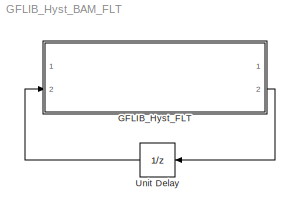
MODEL GFLIB_Hyst_BAM_FLT
KIND model
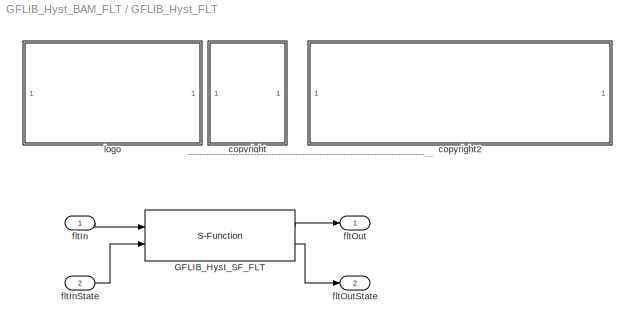
BLOCK [SubSystem] GFLIB_Hyst_FLT
  FunctionWithSeparateData = off
  MaskCallbackString = |||
  MaskDescription = Bit accurate model of hysteresis function. All parameters as well as input and output are in a full float range.
  MaskDisplay = color('black');port_label('input',1,'fltIn');port_label('input',2,'fltInState');port_label('output',1,'fltOut');port_label('output',2,'fltOutState');color('black');disp('GFLIB_Hyst_FLT');color('blue');text(tX,tY, 'BAM', 'horizontalAlignment', 'center');
  MaskEnableString = on,on,on,on
  MaskHideContents = off
  MaskIconFrame = on
  MaskIconOpaque = on
  MaskIconRotate = none
  MaskIconUnits = pixels
  MaskInitialization = pos = get_param(gcb, 'Position');width = pos(3) - pos(1); height = pos(4) - pos(2);tX=width/2;tY=height*0.9;
  MaskPortRotate = default
  MaskPromptString = fltHystOn|fltHystOff|fltOutValOn|fltOutValOff
  MaskStyleString = edit,edit,edit,edit
  MaskTabNameString = ,,,
  MaskToolTipString = on,on,on,on
  MaskTunableValueString = on,on,on,on
  MaskType = GFLIB_Hyst_FLT
  MaskValueString = fltHystOn|fltHystOff|fltOutValOn|fltOutValOff
  MaskVarAliasString = ,,,
  MaskVariables = fltHystOn=@1;fltHystOff=@2;fltOutValOn=@3;fltOutValOff=@4;
  MaskVisibilityString = on,on,on,on
  MinAlgLoopOccurrences = off
  Opaque = off
  Ports = [2, 2]
  PropExecContextOutsideSubsystem = off
  RTWSystemCode = Auto
  RequestExecContextInheritance = off
BLOCK [S-Function] GFLIB_Hyst_FLT/GFLIB_Hyst_SF_FLT
  EnableBusSupport = off
  FunctionName = GFLIB_Hyst_SF_FLT
  Parameters = fltHystOn,fltHystOff,fltOutValOn,fltOutValOff
  Ports = [2, 2]
BLOCK [SubSystem] GFLIB_Hyst_FLT/<copyright redacted>
  FunctionWithSeparateData = off
  MaskDisplay = text(10,90,'FILE:');text(10,75,'DESRIPTION:')text(10,60,'<copyright redacted>
  MaskHideContents = off
  MaskIconFrame = off
  MaskIconOpaque = on
  MaskIconRotate = none
  MaskIconUnits = pixels
  MaskPortRotate = default
  MinAlgLoopOccurrences = off
  Opaque = off
  Ports = []
  PropExecContextOutsideSubsystem = off
  RTWSystemCode = Auto
  RequestExecContextInheritance = off
BLOCK [SubSystem] GFLIB_Hyst_FLT/copyright2
  FunctionWithSeparateData = off
  MaskDisplay = text(10,90,'GFLIB_Hyst_BAM_FLT.mdl');text(10,75,'Hysteresis function.');text(10,60,'Freescale')text(10,45,'0.1');text(10,30,'09-Apr-2014');
  MaskHideContents = off
  MaskIconFrame = off
  MaskIconOpaque = on
  MaskIconRotate = none
  MaskIconUnits = pixels
  MaskPortRotate = default
  MinAlgLoopOccurrences = off
  Opaque = off
  Ports = []
  PropExecContextOutsideSubsystem = off
  RTWSystemCode = Auto
  RequestExecContextInheritance = off
BLOCK [Inport] GFLIB_Hyst_FLT/fltIn
  IconDisplay = Port number
  OutDataType = fixdt(1, 16)
  OutScaling = 2^0
BLOCK [Inport] GFLIB_Hyst_FLT/fltInState
  IconDisplay = Port number
  OutDataType = fixdt(1, 16)
  OutScaling = 2^0
  Port = 2
BLOCK [Outport] GFLIB_Hyst_FLT/fltOut
  IconDisplay = Port number
  OutDataType = fixdt(1, 16)
  OutScaling = 2^0
BLOCK [Outport] GFLIB_Hyst_FLT/fltOutState
  IconDisplay = Port number
  OutDataType = fixdt(1, 16)
  OutScaling = 2^0
  Port = 2
BLOCK [SubSystem] GFLIB_Hyst_FLT/logo
  FunctionWithSeparateData = off
  MaskDisplay = image(imread('logo.jpg'))
  MaskHideContents = off
  MaskIconFrame = off
  MaskIconOpaque = on
  MaskIconRotate = none
  MaskIconUnits = autoscale
  MaskPortRotate = default
  MinAlgLoopOccurrences = off
  Opaque = off
  Ports = []
  PropExecContextOutsideSubsystem = off
  RTWSystemCode = Auto
  RequestExecContextInheritance = off
BLOCK [UnitDelay] Unit Delay
  SampleTime = -1
ANNOTATION GFLIB_Hyst_FLT: ---------------------------------------------------------------------------------------------------------------------------------------------------------------------------------------------------
LINE GFLIB_Hyst_FLT/GFLIB_Hyst_SF_FLT:1 -> GFLIB_Hyst_FLT/fltOut:1
LINE GFLIB_Hyst_FLT/GFLIB_Hyst_SF_FLT:2 -> GFLIB_Hyst_FLT/fltOutState:1
LINE GFLIB_Hyst_FLT/fltIn:1 -> GFLIB_Hyst_FLT/GFLIB_Hyst_SF_FLT:1
LINE GFLIB_Hyst_FLT/fltInState:1 -> GFLIB_Hyst_FLT/GFLIB_Hyst_SF_FLT:2
LINE GFLIB_Hyst_FLT:2 -> Unit Delay:1
LINE Unit Delay:1 -> GFLIB_Hyst_FLT:2
